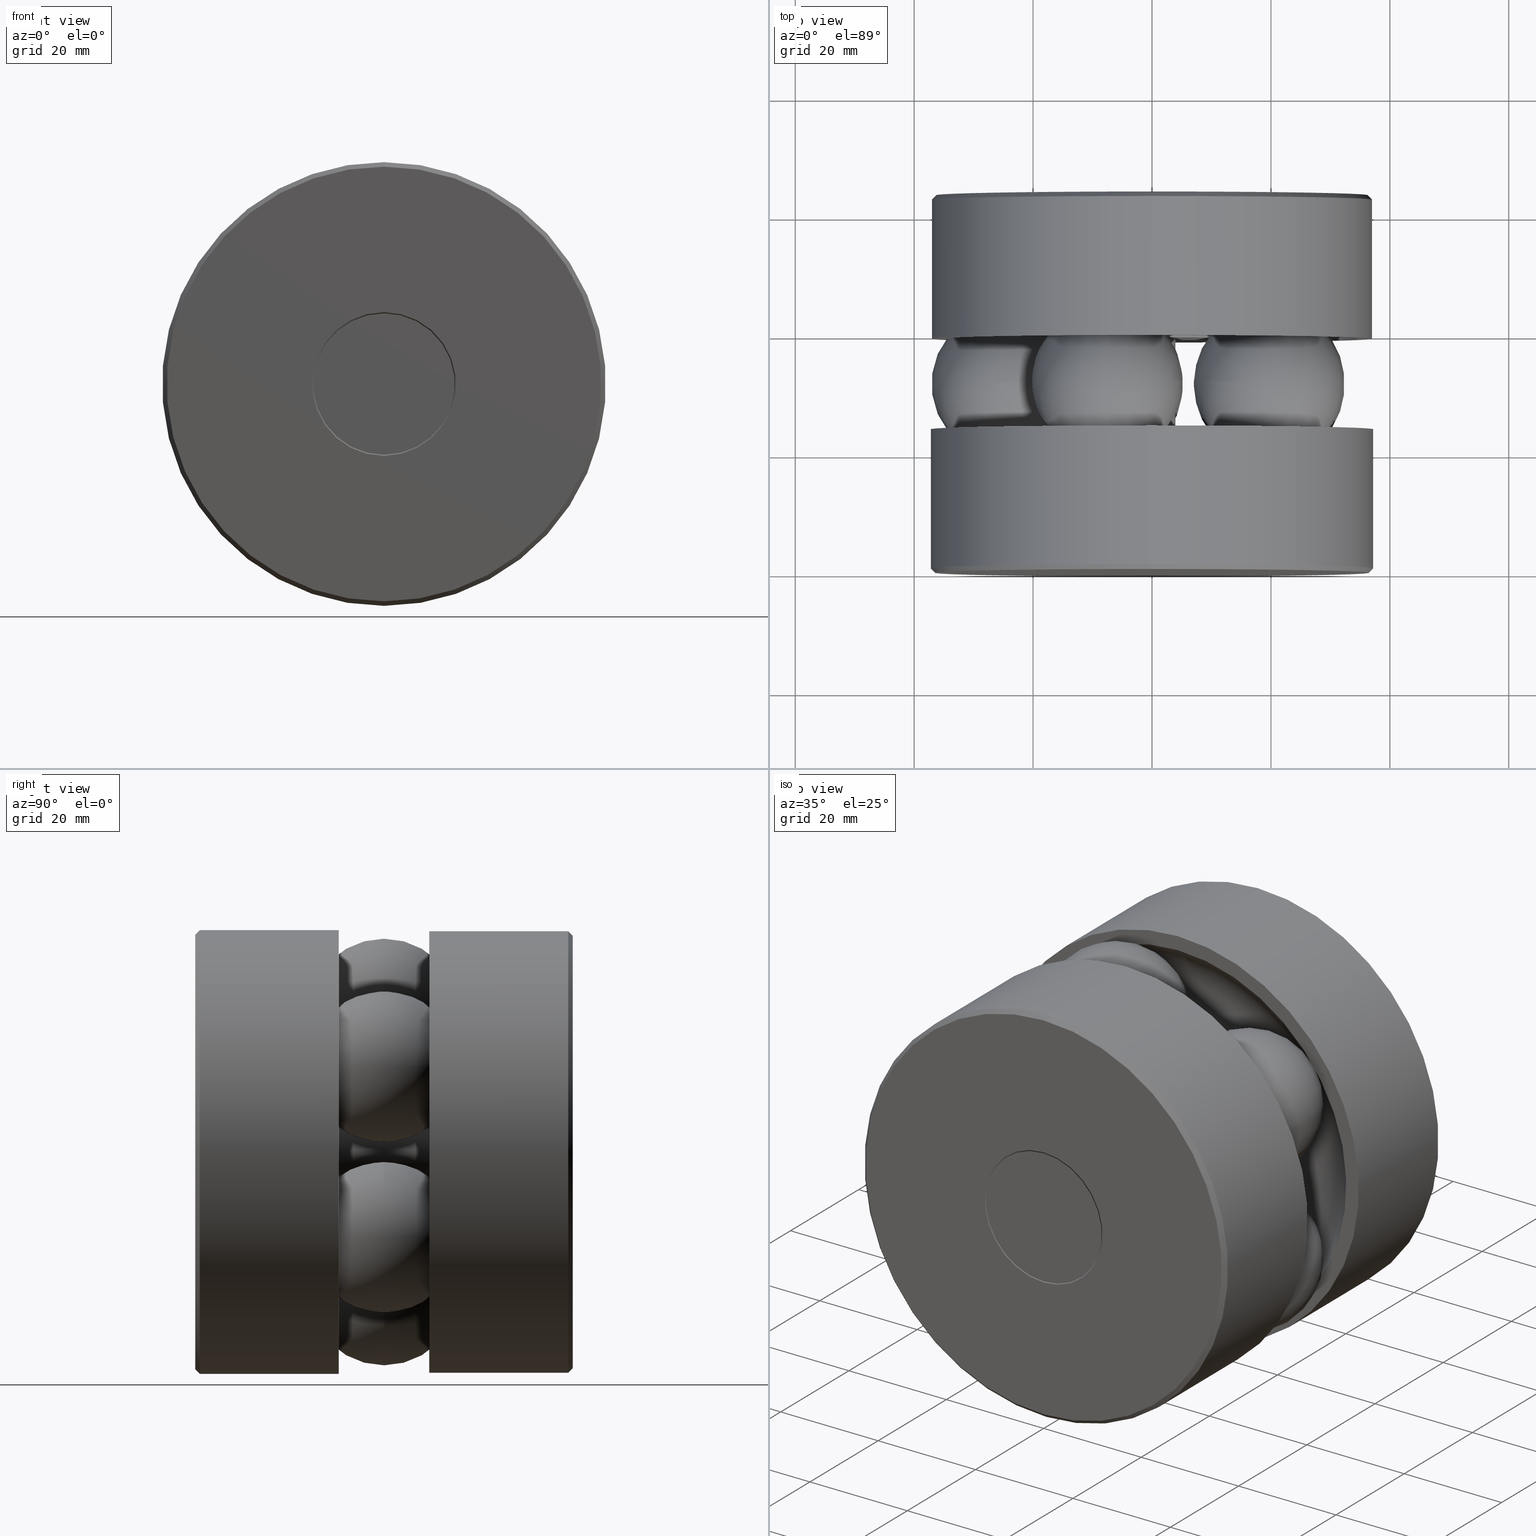
[diagram: canonical four-view strip — front | top / right | iso, engineering-drawing reading convention]
A machine part, canonical four-view strip (front | top / right | iso — engineering-drawing reading convention). The complete STEP part file that produces these views, byte-faithful:
ISO-10303-21;
HEADER;
FILE_DESCRIPTION (( 'STEP AP203' ),
    '1' );
FILE_NAME ('T-114RG_T-114RG-2015.step',
    '2016-02-04T16:15:54',
    ( '' ),
    ( '' ),
    'SwSTEP 2.0',
    'SolidWorks 2016',
    '' );
FILE_SCHEMA (( 'CONFIG_CONTROL_DESIGN' ));
ENDSEC;

DATA;
#1 = EDGE_LOOP ( 'NONE', ( #402 ) ) ;
#2 = DIRECTION ( 'NONE',  ( -0.0000000000000000000, 1.000000000000000000, 0.0000000000000000000 ) ) ;
#3 = DIRECTION ( 'NONE',  ( -0.0000000000000000000, 1.000000000000000000, -0.0000000000000000000 ) ) ;
#4 = FACE_OUTER_BOUND ( 'NONE', #305, .T. ) ;
#5 = APPROVAL ( #124, 'UNSPECIFIED' ) ;
#6 = APPROVAL_STATUS ( 'not_yet_approved' ) ;
#7 = PERSON_AND_ORGANIZATION ( #396, #177 ) ;
#8 = CLOSED_SHELL ( 'NONE', ( #414 ) ) ;
#9 = VERTEX_POINT ( 'NONE', #135 ) ;
#10 = CARTESIAN_POINT ( 'NONE',  ( 0.0000000000000000000, 1.550000000000000000, 0.1610000000000002000 ) ) ;
#11 = AXIS2_PLACEMENT_3D ( 'NONE', #281, #354, #238 ) ;
#12 = AXIS2_PLACEMENT_3D ( 'NONE', #375, #416, #117 ) ;
#13 = ADVANCED_FACE ( 'NONE', ( #44, #417 ), #448, .T. ) ;
#14 = FACE_OUTER_BOUND ( 'NONE', #387, .T. ) ;
#15 = ORIENTED_EDGE ( 'NONE', *, *, #539, .T. ) ;
#16 = COORDINATED_UNIVERSAL_TIME_OFFSET ( 5, 0, .BEHIND. ) ;
#17 = APPROVAL_STATUS ( 'not_yet_approved' ) ;
#18 = AXIS2_PLACEMENT_3D ( 'NONE', #422, #142, #52 ) ;
#19 = DIRECTION ( 'NONE',  ( 0.0000000000000000000, -1.000000000000000000, 0.0000000000000000000 ) ) ;
#20 = CIRCLE ( 'NONE', #312, 1.469000000000000100 ) ;
#21 = DIRECTION ( 'NONE',  ( 0.0000000000000000000, 0.0000000000000000000, 1.000000000000000000 ) ) ;
#22 = VERTEX_POINT ( 'NONE', #491 ) ;
#23 = CARTESIAN_POINT ( 'NONE',  ( 0.0000000000000000000, 0.0000000000000000000, 0.0000000000000000000 ) ) ;
#24 = CARTESIAN_POINT ( 'NONE',  ( -0.4755710678118621500, 2.500000000000000000, 0.0000000000000000000 ) ) ;
#25 = EDGE_CURVE ( 'NONE', #170, #170, #173, .T. ) ;
#26 = DIRECTION ( 'NONE',  ( 0.0000000000000000000, -1.000000000000000000, 0.0000000000000000000 ) ) ;
#27 = DIRECTION ( 'NONE',  ( -0.0000000000000000000, 1.000000000000000000, -0.0000000000000000000 ) ) ;
#28 = MECHANICAL_CONTEXT ( 'NONE', #110, 'mechanical' ) ;
#29 = CARTESIAN_POINT ( 'NONE',  ( 0.0000000000000000000, -3.295805410512742700E-018, 0.0000000000000000000 ) ) ;
#30 = FACE_OUTER_BOUND ( 'NONE', #369, .T. ) ;
#31 = CLOSED_SHELL ( 'NONE', ( #431 ) ) ;
#32 = DIRECTION ( 'NONE',  ( -0.8090169943749506700, 0.0000000000000000000, -0.5877852522924685900 ) ) ;
#33 = CARTESIAN_POINT ( 'NONE',  ( 0.0000000000000000000, 0.3125000000000000000, 0.1560000000000000300 ) ) ;
#34 = LOCAL_TIME ( 11, 15, 54.00000000000000000, #150 ) ;
#35 = CARTESIAN_POINT ( 'NONE',  ( 0.0000000000000000000, 2.500000000000000000, 0.0000000000000000000 ) ) ;
#36 = CC_DESIGN_APPROVAL ( #5, ( #466 ) ) ;
#37 = CARTESIAN_POINT ( 'NONE',  ( -1.469000000000000100, 0.9499999999999994000, 0.0000000000000000000 ) ) ;
#38 = DIRECTION ( 'NONE',  ( 0.3090169943749446800, 0.0000000000000000000, -0.9510565162951544200 ) ) ;
#39 = DIRECTION ( 'NONE',  ( 0.0000000000000000000, 0.0000000000000000000, 1.000000000000000000 ) ) ;
#40 = CYLINDRICAL_SURFACE ( 'NONE', #260, 0.1610000000000002800 ) ;
#41 = EDGE_LOOP ( 'NONE', ( #279 ) ) ;
#42 = DIRECTION ( 'NONE',  ( 0.0000000000000000000, 0.0000000000000000000, 1.000000000000000000 ) ) ;
#43 = SHAPE_DEFINITION_REPRESENTATION ( #90, #259 ) ;
#44 = FACE_OUTER_BOUND ( 'NONE', #46, .T. ) ;
#45 = DIRECTION ( 'NONE',  ( 0.0000000000000000000, 0.0000000000000000000, 1.000000000000000000 ) ) ;
#46 = EDGE_LOOP ( 'NONE', ( #479 ) ) ;
#47 = AXIS2_PLACEMENT_3D ( 'NONE', #463, #542, #210 ) ;
#48 = CALENDAR_DATE ( 2016, 4, 2 ) ;
#49 = CIRCLE ( 'NONE', #532, 0.5600000000000006100 ) ;
#50 = CLOSED_SHELL ( 'NONE', ( #13, #140, #400, #471, #333, #123, #353, #149 ) ) ;
#51 = AXIS2_PLACEMENT_3D ( 'NONE', #351, #3, #477 ) ;
#52 = DIRECTION ( 'NONE',  ( 0.0000000000000000000, 0.0000000000000000000, 1.000000000000000000 ) ) ;
#53 = ORIENTED_EDGE ( 'NONE', *, *, #83, .T. ) ;
#54 = FACE_OUTER_BOUND ( 'NONE', #168, .T. ) ;
#55 = EDGE_CURVE ( 'NONE', #156, #156, #499, .T. ) ;
#56 = FACE_BOUND ( 'NONE', #41, .T. ) ;
#57 = EDGE_LOOP ( 'NONE', ( #201 ) ) ;
#58 = ADVANCED_FACE ( 'NONE', ( #527, #14 ), #215, .T. ) ;
#59 = PERSON_AND_ORGANIZATION ( #396, #177 ) ;
#60 = CC_DESIGN_SECURITY_CLASSIFICATION ( #466, ( #325 ) ) ;
#61 = CARTESIAN_POINT ( 'NONE',  ( 0.0000000000000000000, 1.250000000000000000, 0.0000000000000000000 ) ) ;
#62 = EDGE_LOOP ( 'NONE', ( #520 ) ) ;
#63 = CARTESIAN_POINT ( 'NONE',  ( 0.0000000000000000000, 1.550000000000000000, 0.0000000000000000000 ) ) ;
#64 = CIRCLE ( 'NONE', #418, 0.4755710678118616500 ) ;
#65 = DIRECTION ( 'NONE',  ( 0.0000000000000000000, 0.0000000000000000000, 1.000000000000000000 ) ) ;
#66 = CARTESIAN_POINT ( 'NONE',  ( 0.0000000000000000000, 0.0000000000000000000, 0.0000000000000000000 ) ) ;
#67 = DIRECTION ( 'NONE',  ( 0.0000000000000000000, 0.0000000000000000000, 1.000000000000000000 ) ) ;
#68 = CLOSED_SHELL ( 'NONE', ( #189, #166, #58, #519, #434, #537, #144, #514 ) ) ;
#69 = FACE_OUTER_BOUND ( 'NONE', #428, .T. ) ;
#70 = EDGE_LOOP ( 'NONE', ( #299 ) ) ;
#71 = AXIS2_PLACEMENT_3D ( 'NONE', #453, #169, #67 ) ;
#72 = CARTESIAN_POINT ( 'NONE',  ( 0.0000000000000000000, 1.250000000000000000, 0.0000000000000000000 ) ) ;
#73 = AXIS2_PLACEMENT_3D ( 'NONE', #61, #435, #383 ) ;
#74 = APPROVAL_ROLE ( '' ) ;
#75 = CARTESIAN_POINT ( 'NONE',  ( 0.0000000000000000000, 0.9499999999999994000, 1.469000000000000100 ) ) ;
#76 = CIRCLE ( 'NONE', #368, 0.1560000000000003600 ) ;
#77 = CARTESIAN_POINT ( 'NONE',  ( 0.0000000000000000000, 2.469999999999999800, 0.0000000000000000000 ) ) ;
#78 = DIRECTION ( 'NONE',  ( 0.0000000000000000000, -1.000000000000000000, 0.0000000000000000000 ) ) ;
#79 = DIRECTION ( 'NONE',  ( -0.0000000000000000000, 1.000000000000000000, -0.0000000000000000000 ) ) ;
#80 = ADVANCED_FACE ( 'NONE', ( ), #490, .T. ) ;
#81 = PLANE ( 'NONE',  #47 ) ;
#82 = EDGE_LOOP ( 'NONE', ( #378 ) ) ;
#83 = EDGE_CURVE ( 'NONE', #364, #364, #397, .T. ) ;
#84 = DIRECTION ( 'NONE',  ( -0.0000000000000000000, 1.000000000000000000, -0.0000000000000000000 ) ) ;
#85 = DIMENSIONAL_EXPONENTS ( 1.000000000000000000, 0.0000000000000000000, 0.0000000000000000000, 0.0000000000000000000, 0.0000000000000000000, 0.0000000000000000000, 0.0000000000000000000 ) ;
#86 = LENGTH_MEASURE_WITH_UNIT ( LENGTH_MEASURE( 0.02539999999999999900 ), #318 );
#87 = CARTESIAN_POINT ( 'NONE',  ( 0.0000000000000000000, 0.0000000000000000000, 0.0000000000000000000 ) ) ;
#88 = CARTESIAN_POINT ( 'NONE',  ( -0.4755710678118616500, -1.091043786907128900E-016, 0.0000000000000000000 ) ) ;
#89 = PRODUCT_RELATED_PRODUCT_CATEGORY ( 'detail', '', ( #348 ) ) ;
#90 = PRODUCT_DEFINITION_SHAPE ( 'NONE', 'NONE',  #188 ) ;
#91 = COORDINATED_UNIVERSAL_TIME_OFFSET ( 5, 0, .BEHIND. ) ;
#92 = FACE_OUTER_BOUND ( 'NONE', #197, .T. ) ;
#93 = CLOSED_SHELL ( 'NONE', ( #247, #231, #304, #391, #119 ) ) ;
#94 = ORIENTED_EDGE ( 'NONE', *, *, #155, .F. ) ;
#95 = VERTEX_POINT ( 'NONE', #460 ) ;
#96 = AXIS2_PLACEMENT_3D ( 'NONE', #116, #157, #237 ) ;
#97 = DIRECTION ( 'NONE',  ( 0.0000000000000000000, 0.0000000000000000000, 1.000000000000000000 ) ) ;
#98 = EDGE_LOOP ( 'NONE', ( #153 ) ) ;
#99 = LOCAL_TIME ( 11, 15, 54.00000000000000000, #223 ) ;
#100 = SPHERICAL_SURFACE ( 'NONE', #511, 0.5000000000000001100 ) ;
#101 = AXIS2_PLACEMENT_3D ( 'NONE', #359, #379, #309 ) ;
#102 = CARTESIAN_POINT ( 'NONE',  ( 0.0000000000000000000, 2.500000000000000000, 0.0000000000000000000 ) ) ;
#103 = CARTESIAN_POINT ( 'NONE',  ( 0.0000000000000000000, -2.149129519709130200E-016, 1.439000000000000100 ) ) ;
#104 = ORIENTED_EDGE ( 'NONE', *, *, #405, .T. ) ;
#105 = EDGE_LOOP ( 'NONE', ( #438 ) ) ;
#106 = CARTESIAN_POINT ( 'NONE',  ( -0.2966563145999470700, 1.250000000000000000, 0.9130142556433488200 ) ) ;
#107 = VERTEX_POINT ( 'NONE', #517 ) ;
#108 = EDGE_CURVE ( 'NONE', #251, #251, #130, .T. ) ;
#109 = CARTESIAN_POINT ( 'NONE',  ( 0.0000000000000000000, 0.3125000000000000000, 0.0000000000000000000 ) ) ;
#110 = APPLICATION_CONTEXT ( 'configuration controlled 3d designs of mechanical parts and assemblies' ) ;
#111 = EDGE_LOOP ( 'NONE', ( #449 ) ) ;
#112 = DIRECTION ( 'NONE',  ( 0.0000000000000000000, 0.0000000000000000000, 1.000000000000000000 ) ) ;
#113 = FACE_OUTER_BOUND ( 'NONE', #483, .T. ) ;
#114 = EDGE_LOOP ( 'NONE', ( #53 ) ) ;
#115 = APPROVAL_DATE_TIME ( #234, #357 ) ;
#116 = CARTESIAN_POINT ( 'NONE',  ( 0.0000000000000000000, 2.500000000000000000, 0.0000000000000000000 ) ) ;
#117 = DIRECTION ( 'NONE',  ( 0.0000000000000000000, 0.0000000000000000000, 1.000000000000000000 ) ) ;
#118 = ORIENTED_EDGE ( 'NONE', *, *, #486, .F. ) ;
#119 = ADVANCED_FACE ( 'NONE', ( #30, #56 ), #147, .T. ) ;
#120 = VERTEX_POINT ( 'NONE', #311 ) ;
#121 = DIRECTION ( 'NONE',  ( 0.0000000000000000000, 0.0000000000000000000, 1.000000000000000000 ) ) ;
#122 = CIRCLE ( 'NONE', #424, 0.4684999999999972000 ) ;
#123 = ADVANCED_FACE ( 'NONE', ( #113, #352 ), #81, .T. ) ;
#124 = APPROVAL_STATUS ( 'not_yet_approved' ) ;
#125 =( NAMED_UNIT ( * ) SI_UNIT ( $, .STERADIAN. ) SOLID_ANGLE_UNIT ( ) );
#126 = AXIS2_PLACEMENT_3D ( 'NONE', #87, #39, #371 ) ;
#127 = DIRECTION ( 'NONE',  ( 0.0000000000000000000, 0.0000000000000000000, 1.000000000000000000 ) ) ;
#128 = CARTESIAN_POINT ( 'NONE',  ( 0.0000000000000000000, 1.550000000000000000, 0.5600000000000006100 ) ) ;
#129 = EDGE_LOOP ( 'NONE', ( #406 ) ) ;
#130 = CIRCLE ( 'NONE', #478, 0.5600000000000005000 ) ;
#131 = CARTESIAN_POINT ( 'NONE',  ( 0.7766563145999529900, 1.250000000000000000, 0.5642738422007700400 ) ) ;
#132 = APPROVAL_PERSON_ORGANIZATION ( #242, #357, #366 ) ;
#133 = MANIFOLD_SOLID_BREP ( 'Revolve2[3]', #50 ) ;
#134 = SPHERICAL_SURFACE ( 'NONE', #274, 0.5000000000000001100 ) ;
#135 = CARTESIAN_POINT ( 'NONE',  ( 0.0000000000000000000, 2.500000000000000000, 0.4684999999999977000 ) ) ;
#136 = CLOSED_SHELL ( 'NONE', ( #294 ) ) ;
#137 = AXIS2_PLACEMENT_3D ( 'NONE', #207, #536, #295 ) ;
#138 = CIRCLE ( 'NONE', #287, 1.462000000000000200 ) ;
#139 = VERTEX_POINT ( 'NONE', #103 ) ;
#140 = ADVANCED_FACE ( 'NONE', ( #462, #186 ), #342, .T. ) ;
#141 = CARTESIAN_POINT ( 'NONE',  ( 0.0000000000000000000, 1.550000000000000000, 0.0000000000000000000 ) ) ;
#142 = DIRECTION ( 'NONE',  ( -0.0000000000000000000, 1.000000000000000000, -0.0000000000000000000 ) ) ;
#143 = EDGE_CURVE ( 'NONE', #139, #139, #266, .T. ) ;
#144 = ADVANCED_FACE ( 'NONE', ( #4, #241 ), #377, .T. ) ;
#145 =( NAMED_UNIT ( * ) PLANE_ANGLE_UNIT ( ) SI_UNIT ( $, .RADIAN. ) );
#146 = EDGE_LOOP ( 'NONE', ( #329 ) ) ;
#147 = CONICAL_SURFACE ( 'NONE', #509, 0.1560000000000000300, 0.7853981633974437300 ) ;
#148 = ORIENTED_EDGE ( 'NONE', *, *, #83, .F. ) ;
#149 = ADVANCED_FACE ( 'NONE', ( #69, #272 ), #407, .T. ) ;
#150 = COORDINATED_UNIVERSAL_TIME_OFFSET ( 5, 0, .BEHIND. ) ;
#151 = AXIS2_PLACEMENT_3D ( 'NONE', #283, #324, #495 ) ;
#152 = CYLINDRICAL_SURFACE ( 'NONE', #195, 0.1560000000000001900 ) ;
#153 = ORIENTED_EDGE ( 'NONE', *, *, #515, .T. ) ;
#154 = CIRCLE ( 'NONE', #233, 0.1610000000000003900 ) ;
#155 = EDGE_CURVE ( 'NONE', #22, #22, #484, .T. ) ;
#156 = VERTEX_POINT ( 'NONE', #33 ) ;
#157 = DIRECTION ( 'NONE',  ( 0.0000000000000000000, -1.000000000000000000, 0.0000000000000000000 ) ) ;
#158 = ORIENTED_EDGE ( 'NONE', *, *, #459, .T. ) ;
#159 = ORIENTED_EDGE ( 'NONE', *, *, #253, .F. ) ;
#160 = CC_DESIGN_PERSON_AND_ORGANIZATION_ASSIGNMENT ( #59, #261, ( #348 ) ) ;
#161 = LOCAL_TIME ( 11, 15, 54.00000000000000000, #268 ) ;
#162 = DATE_TIME_ROLE ( 'creation_date' ) ;
#163 = FACE_OUTER_BOUND ( 'NONE', #398, .T. ) ;
#164 = DIRECTION ( 'NONE',  ( -0.0000000000000000000, 1.000000000000000000, -0.0000000000000000000 ) ) ;
#165 = CARTESIAN_POINT ( 'NONE',  ( -0.9600000000000003000, 1.250000000000000000, 0.0000000000000000000 ) ) ;
#166 = ADVANCED_FACE ( 'NONE', ( #327, #232 ), #40, .F. ) ;
#167 = FACE_BOUND ( 'NONE', #256, .T. ) ;
#168 = EDGE_LOOP ( 'NONE', ( #355 ) ) ;
#169 = DIRECTION ( 'NONE',  ( -0.0000000000000000000, 1.000000000000000000, -0.0000000000000000000 ) ) ;
#170 = VERTEX_POINT ( 'NONE', #10 ) ;
#171 = DIRECTION ( 'NONE',  ( -0.8090169943749422300, 0.0000000000000000000, 0.5877852522924802400 ) ) ;
#172 = EDGE_CURVE ( 'NONE', #458, #458, #154, .T. ) ;
#173 = CIRCLE ( 'NONE', #307, 0.1610000000000002000 ) ;
#174 = PLANE ( 'NONE',  #452 ) ;
#175 = APPLICATION_CONTEXT ( 'configuration controlled 3d designs of mechanical parts and assemblies' ) ;
#176 = ORIENTED_EDGE ( 'NONE', *, *, #55, .T. ) ;
#177 = ORGANIZATION ( 'UNSPECIFIED', 'UNSPECIFIED', '' ) ;
#178 = DIRECTION ( 'NONE',  ( 0.0000000000000000000, 0.0000000000000000000, 1.000000000000000000 ) ) ;
#179 = DIRECTION ( 'NONE',  ( 0.0000000000000000000, -0.0000000000000000000, -1.000000000000000000 ) ) ;
#180 = AXIS2_PLACEMENT_3D ( 'NONE', #37, #363, #235 ) ;
#181 = DIRECTION ( 'NONE',  ( -0.0000000000000000000, 1.000000000000000000, -0.0000000000000000000 ) ) ;
#182 = EDGE_LOOP ( 'NONE', ( #159 ) ) ;
#183 = FACE_BOUND ( 'NONE', #384, .T. ) ;
#184 = CIRCLE ( 'NONE', #246, 1.462000000000000200 ) ;
#185 = DIRECTION ( 'NONE',  ( 0.0000000000000000000, 0.0000000000000000000, -1.000000000000000000 ) ) ;
#186 = FACE_OUTER_BOUND ( 'NONE', #372, .T. ) ;
#187 = EDGE_LOOP ( 'NONE', ( #222 ) ) ;
#188 = PRODUCT_DEFINITION ( 'UNKNOWN', '', #325, #420 ) ;
#189 = ADVANCED_FACE ( 'NONE', ( #392, #167 ), #456, .F. ) ;
#190 = MANIFOLD_SOLID_BREP ( 'BALLS[4]', #136 ) ;
#191 = CARTESIAN_POINT ( 'NONE',  ( 0.0000000000000000000, 2.500000000000000000, 0.4755710678118621500 ) ) ;
#192 = ORIENTED_EDGE ( 'NONE', *, *, #429, .T. ) ;
#193 = ORIENTED_EDGE ( 'NONE', *, *, #370, .F. ) ;
#194 = APPROVAL_DATE_TIME ( #300, #5 ) ;
#195 = AXIS2_PLACEMENT_3D ( 'NONE', #314, #276, #65 ) ;
#196 = SPHERICAL_SURFACE ( 'NONE', #338, 0.5000000000000001100 ) ;
#197 = EDGE_LOOP ( 'NONE', ( #282 ) ) ;
#198 = DIRECTION ( 'NONE',  ( -0.5877852522924685900, 0.0000000000000000000, 0.8090169943749506700 ) ) ;
#199 = EDGE_LOOP ( 'NONE', ( #319 ) ) ;
#200 = CARTESIAN_POINT ( 'NONE',  ( 0.0000000000000000000, 0.9499999999999995100, 0.5600000000000005000 ) ) ;
#201 = ORIENTED_EDGE ( 'NONE', *, *, #487, .F. ) ;
#202 = DIRECTION ( 'NONE',  ( 0.0000000000000000000, 0.0000000000000000000, 1.000000000000000000 ) ) ;
#203 = ORIENTED_EDGE ( 'NONE', *, *, #382, .T. ) ;
#204 = EDGE_CURVE ( 'NONE', #347, #347, #138, .T. ) ;
#205 = CARTESIAN_POINT ( 'NONE',  ( 0.0000000000000000000, 1.550000000000000000, 0.0000000000000000000 ) ) ;
#206 = TOROIDAL_SURFACE ( 'NONE', #73, 0.9600000000000003000, 0.5000000000000001100 ) ;
#207 = CARTESIAN_POINT ( 'NONE',  ( 0.0000000000000000000, 0.9499999999999994000, 0.0000000000000000000 ) ) ;
#208 = AXIS2_PLACEMENT_3D ( 'NONE', #503, #381, #292 ) ;
#209 = DIRECTION ( 'NONE',  ( 0.0000000000000000000, 0.0000000000000000000, 1.000000000000000000 ) ) ;
#210 = DIRECTION ( 'NONE',  ( 0.0000000000000000000, 0.0000000000000000000, 1.000000000000000000 ) ) ;
#211 = APPROVAL_PERSON_ORGANIZATION ( #315, #5, #221 ) ;
#212 = FACE_BOUND ( 'NONE', #111, .T. ) ;
#213 = CARTESIAN_POINT ( 'NONE',  ( 0.0000000000000000000, 0.9499999999999994000, 1.359999999999999900 ) ) ;
#214 = CARTESIAN_POINT ( 'NONE',  ( 0.0000000000000000000, -3.295805410512742700E-018, 0.4755710678118616500 ) ) ;
#215 = PLANE ( 'NONE',  #419 ) ;
#216 = VERTEX_POINT ( 'NONE', #214 ) ;
#217 = DIRECTION ( 'NONE',  ( 0.0000000000000000000, -0.0000000000000000000, -1.000000000000000000 ) ) ;
#218 = DATE_TIME_ROLE ( 'classification_date' ) ;
#219 = CARTESIAN_POINT ( 'NONE',  ( 0.0000000000000000000, 1.550000000000000000, 0.0000000000000000000 ) ) ;
#220 = APPROVAL ( #17, 'UNSPECIFIED' ) ;
#221 = APPROVAL_ROLE ( '' ) ;
#222 = ORIENTED_EDGE ( 'NONE', *, *, #459, .F. ) ;
#223 = COORDINATED_UNIVERSAL_TIME_OFFSET ( 5, 0, .BEHIND. ) ;
#224 = CIRCLE ( 'NONE', #101, 1.469000000000000100 ) ;
#225 = AXIS2_PLACEMENT_3D ( 'NONE', #88, #19, #217 ) ;
#226 = ORIENTED_EDGE ( 'NONE', *, *, #143, .T. ) ;
#227 = VERTEX_POINT ( 'NONE', #213 ) ;
#228 = CYLINDRICAL_SURFACE ( 'NONE', #51, 0.1610000000000000600 ) ;
#229 = EDGE_CURVE ( 'NONE', #236, #236, #20, .T. ) ;
#230 = DIRECTION ( 'NONE',  ( -0.0000000000000000000, 1.000000000000000000, 0.0000000000000000000 ) ) ;
#231 = ADVANCED_FACE ( 'NONE', ( #248 ), #339, .T. ) ;
#232 = FACE_OUTER_BOUND ( 'NONE', #345, .T. ) ;
#233 = AXIS2_PLACEMENT_3D ( 'NONE', #489, #84, #202 ) ;
#234 = DATE_AND_TIME ( #343, #450 ) ;
#235 = DIRECTION ( 'NONE',  ( 0.0000000000000000000, 0.0000000000000000000, 1.000000000000000000 ) ) ;
#236 = VERTEX_POINT ( 'NONE', #528 ) ;
#237 = DIRECTION ( 'NONE',  ( 0.0000000000000000000, 0.0000000000000000000, -1.000000000000000000 ) ) ;
#238 = DIRECTION ( 'NONE',  ( 0.0000000000000000000, 0.0000000000000000000, 1.000000000000000000 ) ) ;
#239 = CC_DESIGN_APPROVAL ( #220, ( #188 ) ) ;
#240 = ORIENTED_EDGE ( 'NONE', *, *, #155, .T. ) ;
#241 = FACE_BOUND ( 'NONE', #146, .T. ) ;
#242 = PERSON_AND_ORGANIZATION ( #396, #177 ) ;
#243 = DIRECTION ( 'NONE',  ( 0.0000000000000000000, 0.0000000000000000000, 1.000000000000000000 ) ) ;
#244 = FACE_OUTER_BOUND ( 'NONE', #481, .T. ) ;
#245 = DIRECTION ( 'NONE',  ( 0.0000000000000000000, -1.000000000000000000, 0.0000000000000000000 ) ) ;
#246 = AXIS2_PLACEMENT_3D ( 'NONE', #77, #337, #257 ) ;
#247 = ADVANCED_FACE ( 'NONE', ( #362 ), #174, .T. ) ;
#248 = FACE_OUTER_BOUND ( 'NONE', #129, .T. ) ;
#249 = CARTESIAN_POINT ( 'NONE',  ( 0.0000000000000000000, 1.550000000000000000, 1.359999999999999900 ) ) ;
#250 = APPLICATION_PROTOCOL_DEFINITION ( 'international standard', 'config_control_design', 1994, #110 ) ;
#251 = VERTEX_POINT ( 'NONE', #200 ) ;
#252 = CARTESIAN_POINT ( 'NONE',  ( 0.0000000000000000000, 0.0000000000000000000, 0.0000000000000000000 ) ) ;
#253 = EDGE_CURVE ( 'NONE', #120, #120, #122, .T. ) ;
#254 = CARTESIAN_POINT ( 'NONE',  ( -0.4684999999999972000, 0.0000000000000000000, 0.0000000000000000000 ) ) ;
#255 = EDGE_LOOP ( 'NONE', ( #226 ) ) ;
#256 = EDGE_LOOP ( 'NONE', ( #322 ) ) ;
#257 = DIRECTION ( 'NONE',  ( 0.0000000000000000000, 0.0000000000000000000, 1.000000000000000000 ) ) ;
#258 = PERSON_AND_ORGANIZATION ( #396, #177 ) ;
#259 = ADVANCED_BREP_SHAPE_REPRESENTATION ( 'T-114RG_T-114RG-2015', ( #286, #447, #133, #373, #326, #269, #389, #190, #126 ), #474 ) ;
#260 = AXIS2_PLACEMENT_3D ( 'NONE', #23, #164, #243 ) ;
#261 = PERSON_AND_ORGANIZATION_ROLE ( 'design_owner' ) ;
#262 = DIRECTION ( 'NONE',  ( 0.5877852522924802400, -0.0000000000000000000, 0.8090169943749422300 ) ) ;
#263 = CIRCLE ( 'NONE', #137, 1.359999999999999900 ) ;
#264 = CYLINDRICAL_SURFACE ( 'NONE', #11, 1.462000000000000200 ) ;
#265 = ORIENTED_EDGE ( 'NONE', *, *, #25, .T. ) ;
#266 = CIRCLE ( 'NONE', #71, 1.439000000000000100 ) ;
#267 = ORIENTED_EDGE ( 'NONE', *, *, #108, .F. ) ;
#268 = COORDINATED_UNIVERSAL_TIME_OFFSET ( 5, 0, .BEHIND. ) ;
#269 = MANIFOLD_SOLID_BREP ( 'BALLS[2]', #518 ) ;
#270 = CC_DESIGN_PERSON_AND_ORGANIZATION_ASSIGNMENT ( #258, #538, ( #188 ) ) ;
#271 = FACE_OUTER_BOUND ( 'NONE', #57, .T. ) ;
#272 = FACE_BOUND ( 'NONE', #313, .T. ) ;
#273 = EDGE_LOOP ( 'NONE', ( #267 ) ) ;
#274 = AXIS2_PLACEMENT_3D ( 'NONE', #106, #430, #38 ) ;
#275 = FACE_OUTER_BOUND ( 'NONE', #393, .T. ) ;
#276 = DIRECTION ( 'NONE',  ( -0.0000000000000000000, 1.000000000000000000, -0.0000000000000000000 ) ) ;
#277 = DIRECTION ( 'NONE',  ( -0.0000000000000000000, 1.000000000000000000, -0.0000000000000000000 ) ) ;
#278 = DIRECTION ( 'NONE',  ( 0.0000000000000000000, 0.0000000000000000000, 1.000000000000000000 ) ) ;
#279 = ORIENTED_EDGE ( 'NONE', *, *, #55, .F. ) ;
#280 = AXIS2_PLACEMENT_3D ( 'NONE', #109, #181, #42 ) ;
#281 = CARTESIAN_POINT ( 'NONE',  ( 0.0000000000000000000, 0.0000000000000000000, 0.0000000000000000000 ) ) ;
#282 = ORIENTED_EDGE ( 'NONE', *, *, #515, .F. ) ;
#283 = CARTESIAN_POINT ( 'NONE',  ( 0.0000000000000000000, 0.3145710678118652200, 0.0000000000000000000 ) ) ;
#284 = CIRCLE ( 'NONE', #18, 0.4684999999999977000 ) ;
#285 = DIRECTION ( 'NONE',  ( -0.0000000000000000000, 1.000000000000000000, -0.0000000000000000000 ) ) ;
#286 = MANIFOLD_SOLID_BREP ( 'Revolve2[1]', #93 ) ;
#287 = AXIS2_PLACEMENT_3D ( 'NONE', #219, #461, #502 ) ;
#288 = DIRECTION ( 'NONE',  ( 0.9510565162951500900, 0.0000000000000000000, -0.3090169943749582200 ) ) ;
#289 = CONICAL_SURFACE ( 'NONE', #415, 0.4755710678118616500, 0.7853981633974426200 ) ;
#290 = DIRECTION ( 'NONE',  ( -0.0000000000000000000, 1.000000000000000000, -0.0000000000000000000 ) ) ;
#291 = DIRECTION ( 'NONE',  ( 0.0000000000000000000, -0.0000000000000000000, -1.000000000000000000 ) ) ;
#292 = DIRECTION ( 'NONE',  ( 0.0000000000000000000, 0.0000000000000000000, 1.000000000000000000 ) ) ;
#293 = ORIENTED_EDGE ( 'NONE', *, *, #25, .F. ) ;
#294 = ADVANCED_FACE ( 'NONE', ( ), #100, .T. ) ;
#295 = DIRECTION ( 'NONE',  ( 0.0000000000000000000, 0.0000000000000000000, 1.000000000000000000 ) ) ;
#296 = DIRECTION ( 'NONE',  ( 0.0000000000000000000, 0.0000000000000000000, 1.000000000000000000 ) ) ;
#297 = CC_DESIGN_DATE_AND_TIME_ASSIGNMENT ( #358, #162, ( #188 ) ) ;
#298 = DIRECTION ( 'NONE',  ( 0.3090169943749582200, 0.0000000000000000000, 0.9510565162951500900 ) ) ;
#299 = ORIENTED_EDGE ( 'NONE', *, *, #204, .F. ) ;
#300 = DATE_AND_TIME ( #411, #523 ) ;
#301 = TOROIDAL_SURFACE ( 'NONE', #507, 0.9600000000000003000, 0.4999999999999997800 ) ;
#302 = FACE_OUTER_BOUND ( 'NONE', #273, .T. ) ;
#303 = PLANE ( 'NONE',  #394 ) ;
#304 = ADVANCED_FACE ( 'NONE', ( #441, #163 ), #513, .T. ) ;
#305 = EDGE_LOOP ( 'NONE', ( #192 ) ) ;
#306 = AXIS2_PLACEMENT_3D ( 'NONE', #141, #310, #541 ) ;
#307 = AXIS2_PLACEMENT_3D ( 'NONE', #205, #285, #127 ) ;
#308 = DIRECTION ( 'NONE',  ( -0.0000000000000000000, 1.000000000000000000, -0.0000000000000000000 ) ) ;
#309 = DIRECTION ( 'NONE',  ( 0.0000000000000000000, 0.0000000000000000000, 1.000000000000000000 ) ) ;
#310 = DIRECTION ( 'NONE',  ( -0.0000000000000000000, 1.000000000000000000, -0.0000000000000000000 ) ) ;
#311 = CARTESIAN_POINT ( 'NONE',  ( 0.0000000000000000000, 0.0000000000000000000, 0.4684999999999972000 ) ) ;
#312 = AXIS2_PLACEMENT_3D ( 'NONE', #497, #290, #21 ) ;
#313 = EDGE_LOOP ( 'NONE', ( #492 ) ) ;
#314 = CARTESIAN_POINT ( 'NONE',  ( 0.0000000000000000000, 0.0000000000000000000, 0.0000000000000000000 ) ) ;
#315 = PERSON_AND_ORGANIZATION ( #396, #177 ) ;
#316 = SPHERICAL_SURFACE ( 'NONE', #332, 0.5000000000000001100 ) ;
#317 = FACE_OUTER_BOUND ( 'NONE', #473, .T. ) ;
#318 =( LENGTH_UNIT ( ) NAMED_UNIT ( * ) SI_UNIT ( $, .METRE. ) );
#319 = ORIENTED_EDGE ( 'NONE', *, *, #382, .F. ) ;
#320 = CARTESIAN_POINT ( 'NONE',  ( 0.0000000000000000000, 0.9499999999999999600, 0.0000000000000000000 ) ) ;
#321 = DIRECTION ( 'NONE',  ( -0.0000000000000000000, 1.000000000000000000, -0.0000000000000000000 ) ) ;
#322 = ORIENTED_EDGE ( 'NONE', *, *, #172, .F. ) ;
#323 = VERTEX_POINT ( 'NONE', #476 ) ;
#324 = DIRECTION ( 'NONE',  ( -0.0000000000000000000, 1.000000000000000000, -0.0000000000000000000 ) ) ;
#325 = PRODUCT_DEFINITION_FORMATION_WITH_SPECIFIED_SOURCE ( 'ANY', '', #348, .NOT_KNOWN. ) ;
#326 = MANIFOLD_SOLID_BREP ( 'BALLS[1]', #8 ) ;
#327 = FACE_OUTER_BOUND ( 'NONE', #105, .T. ) ;
#328 = CARTESIAN_POINT ( 'NONE',  ( 0.0000000000000000000, 2.185428932188135100, 0.1610000000000003900 ) ) ;
#329 = ORIENTED_EDGE ( 'NONE', *, *, #539, .F. ) ;
#330 = PERSON_AND_ORGANIZATION ( #396, #177 ) ;
#331 = CLOSED_SHELL ( 'NONE', ( #475 ) ) ;
#332 = AXIS2_PLACEMENT_3D ( 'NONE', #442, #262, #171 ) ;
#333 = ADVANCED_FACE ( 'NONE', ( #244, #451 ), #228, .F. ) ;
#334 = DIRECTION ( 'NONE',  ( 0.0000000000000000000, 0.0000000000000000000, 1.000000000000000000 ) ) ;
#335 = CARTESIAN_POINT ( 'NONE',  ( 0.0000000000000000000, 0.3125000000000000000, 0.0000000000000000000 ) ) ;
#336 = VERTEX_POINT ( 'NONE', #75 ) ;
#337 = DIRECTION ( 'NONE',  ( -0.0000000000000000000, 1.000000000000000000, -0.0000000000000000000 ) ) ;
#338 = AXIS2_PLACEMENT_3D ( 'NONE', #165, #404, #367 ) ;
#339 = PLANE ( 'NONE',  #401 ) ;
#340 = AXIS2_PLACEMENT_3D ( 'NONE', #252, #321, #121 ) ;
#341 = CARTESIAN_POINT ( 'NONE',  ( 0.0000000000000000000, 0.9499999999999995100, 0.0000000000000000000 ) ) ;
#342 = CONICAL_SURFACE ( 'NONE', #12, 1.469000000000000100, 0.7853981633974430600 ) ;
#343 = CALENDAR_DATE ( 2016, 4, 2 ) ;
#344 = FACE_OUTER_BOUND ( 'NONE', #1, .T. ) ;
#345 = EDGE_LOOP ( 'NONE', ( #293 ) ) ;
#346 = EDGE_CURVE ( 'NONE', #9, #9, #284, .T. ) ;
#347 = VERTEX_POINT ( 'NONE', #349 ) ;
#348 = PRODUCT ( 'T-114RG_T-114RG-2015', 'T-114RG_T-114RG-2015', '', ( #28 ) ) ;
#349 = CARTESIAN_POINT ( 'NONE',  ( 0.0000000000000000000, 1.550000000000000000, 1.462000000000000200 ) ) ;
#350 =( CONVERSION_BASED_UNIT ( 'INCH', #86 ) LENGTH_UNIT ( ) NAMED_UNIT ( #85 ) );
#351 = CARTESIAN_POINT ( 'NONE',  ( 0.0000000000000000000, 0.0000000000000000000, 0.0000000000000000000 ) ) ;
#352 = FACE_BOUND ( 'NONE', #187, .T. ) ;
#353 = ADVANCED_FACE ( 'NONE', ( #413, #302 ), #206, .F. ) ;
#354 = DIRECTION ( 'NONE',  ( -0.0000000000000000000, 1.000000000000000000, -0.0000000000000000000 ) ) ;
#355 = ORIENTED_EDGE ( 'NONE', *, *, #429, .F. ) ;
#356 = UNCERTAINTY_MEASURE_WITH_UNIT (LENGTH_MEASURE( 1.000000000000000100E-005 ), #350, 'distance_accuracy_value', 'NONE');
#357 = APPROVAL ( #6, 'UNSPECIFIED' ) ;
#358 = DATE_AND_TIME ( #465, #34 ) ;
#359 = CARTESIAN_POINT ( 'NONE',  ( 0.0000000000000000000, 0.9499999999999994000, 0.0000000000000000000 ) ) ;
#360 = DIRECTION ( 'NONE',  ( 0.0000000000000000000, 0.0000000000000000000, 1.000000000000000000 ) ) ;
#361 = AXIS2_PLACEMENT_3D ( 'NONE', #320, #433, #360 ) ;
#362 = FACE_OUTER_BOUND ( 'NONE', #182, .T. ) ;
#363 = DIRECTION ( 'NONE',  ( -0.0000000000000000000, 1.000000000000000000, 0.0000000000000000000 ) ) ;
#364 = VERTEX_POINT ( 'NONE', #191 ) ;
#365 = CARTESIAN_POINT ( 'NONE',  ( -0.5600000000000006100, 1.550000000000000000, 0.0000000000000000000 ) ) ;
#366 = APPROVAL_ROLE ( '' ) ;
#367 = DIRECTION ( 'NONE',  ( 1.000000000000000000, 0.0000000000000000000, 0.0000000000000000000 ) ) ;
#368 = AXIS2_PLACEMENT_3D ( 'NONE', #470, #27, #334 ) ;
#369 = EDGE_LOOP ( 'NONE', ( #464 ) ) ;
#370 = EDGE_CURVE ( 'NONE', #443, #443, #49, .T. ) ;
#371 = DIRECTION ( 'NONE',  ( 1.000000000000000000, 0.0000000000000000000, 0.0000000000000000000 ) ) ;
#372 = EDGE_LOOP ( 'NONE', ( #410 ) ) ;
#373 = MANIFOLD_SOLID_BREP ( 'Revolve3', #331 ) ;
#374 = APPROVAL_DATE_TIME ( #480, #220 ) ;
#375 = CARTESIAN_POINT ( 'NONE',  ( 0.0000000000000000000, 0.03000000000000005400, 0.0000000000000000000 ) ) ;
#376 = PERSON_AND_ORGANIZATION_ROLE ( 'classification_officer' ) ;
#377 = CONICAL_SURFACE ( 'NONE', #96, 1.432000000000000400, 0.7853981633974346200 ) ;
#378 = ORIENTED_EDGE ( 'NONE', *, *, #204, .T. ) ;
#379 = DIRECTION ( 'NONE',  ( -0.0000000000000000000, 1.000000000000000000, -0.0000000000000000000 ) ) ;
#380 = CIRCLE ( 'NONE', #530, 1.432000000000000400 ) ;
#381 = DIRECTION ( 'NONE',  ( -0.0000000000000000000, 1.000000000000000000, -0.0000000000000000000 ) ) ;
#382 = EDGE_CURVE ( 'NONE', #336, #336, #224, .T. ) ;
#383 = DIRECTION ( 'NONE',  ( 0.0000000000000000000, 0.0000000000000000000, 1.000000000000000000 ) ) ;
#384 = EDGE_LOOP ( 'NONE', ( #148 ) ) ;
#385 = APPLICATION_PROTOCOL_DEFINITION ( 'international standard', 'config_control_design', 1994, #175 ) ;
#386 = APPROVAL_PERSON_ORGANIZATION ( #493, #220, #74 ) ;
#387 = EDGE_LOOP ( 'NONE', ( #193 ) ) ;
#388 = CC_DESIGN_APPROVAL ( #357, ( #325 ) ) ;
#389 = MANIFOLD_SOLID_BREP ( 'BALLS[3]', #31 ) ;
#390 = DIRECTION ( 'NONE',  ( 0.0000000000000000000, -1.000000000000000000, 0.0000000000000000000 ) ) ;
#391 = ADVANCED_FACE ( 'NONE', ( #317, #271 ), #152, .T. ) ;
#392 = FACE_OUTER_BOUND ( 'NONE', #114, .T. ) ;
#393 = EDGE_LOOP ( 'NONE', ( #118 ) ) ;
#394 = AXIS2_PLACEMENT_3D ( 'NONE', #444, #26, #291 ) ;
#395 = FACE_OUTER_BOUND ( 'NONE', #82, .T. ) ;
#396 = PERSON ( 'UNSPECIFIED', 'UNSPECIFIED', 'UNSPECIFIED', ('UNSPECIFIED'), ('UNSPECIFIED'), ('UNSPECIFIED') ) ;
#397 = CIRCLE ( 'NONE', #399, 0.4755710678118621500 ) ;
#398 = EDGE_LOOP ( 'NONE', ( #500 ) ) ;
#399 = AXIS2_PLACEMENT_3D ( 'NONE', #35, #529, #485 ) ;
#400 = ADVANCED_FACE ( 'NONE', ( #494, #344 ), #521, .T. ) ;
#401 = AXIS2_PLACEMENT_3D ( 'NONE', #102, #2, #209 ) ;
#402 = ORIENTED_EDGE ( 'NONE', *, *, #143, .F. ) ;
#403 = CIRCLE ( 'NONE', #306, 1.359999999999999900 ) ;
#404 = DIRECTION ( 'NONE',  ( 0.0000000000000000000, 0.0000000000000000000, -1.000000000000000000 ) ) ;
#405 = EDGE_CURVE ( 'NONE', #227, #227, #263, .T. ) ;
#406 = ORIENTED_EDGE ( 'NONE', *, *, #346, .T. ) ;
#407 = PLANE ( 'NONE',  #180 ) ;
#408 = DIRECTION ( 'NONE',  ( 0.0000000000000000000, -0.0000000000000000000, -1.000000000000000000 ) ) ;
#409 = CC_DESIGN_PERSON_AND_ORGANIZATION_ASSIGNMENT ( #7, #472, ( #325 ) ) ;
#410 = ORIENTED_EDGE ( 'NONE', *, *, #229, .F. ) ;
#411 = CALENDAR_DATE ( 2016, 4, 2 ) ;
#412 = FACE_OUTER_BOUND ( 'NONE', #423, .T. ) ;
#413 = FACE_OUTER_BOUND ( 'NONE', #526, .T. ) ;
#414 = ADVANCED_FACE ( 'NONE', ( ), #134, .T. ) ;
#415 = AXIS2_PLACEMENT_3D ( 'NONE', #506, #498, #185 ) ;
#416 = DIRECTION ( 'NONE',  ( -0.0000000000000000000, 1.000000000000000000, -0.0000000000000000000 ) ) ;
#417 = FACE_OUTER_BOUND ( 'NONE', #199, .T. ) ;
#418 = AXIS2_PLACEMENT_3D ( 'NONE', #29, #308, #178 ) ;
#419 = AXIS2_PLACEMENT_3D ( 'NONE', #365, #390, #408 ) ;
#420 = DESIGN_CONTEXT ( 'detailed design', #175, 'design' ) ;
#421 = DIRECTION ( 'NONE',  ( 0.0000000000000000000, 0.0000000000000000000, -1.000000000000000000 ) ) ;
#422 = CARTESIAN_POINT ( 'NONE',  ( 0.0000000000000000000, 2.500000000000000000, 0.0000000000000000000 ) ) ;
#423 = EDGE_LOOP ( 'NONE', ( #15 ) ) ;
#424 = AXIS2_PLACEMENT_3D ( 'NONE', #66, #508, #45 ) ;
#425 = DATE_AND_TIME ( #531, #99 ) ;
#426 = CIRCLE ( 'NONE', #361, 0.1610000000000001200 ) ;
#427 = EDGE_LOOP ( 'NONE', ( #505 ) ) ;
#428 = EDGE_LOOP ( 'NONE', ( #203 ) ) ;
#429 = EDGE_CURVE ( 'NONE', #107, #107, #184, .T. ) ;
#430 = DIRECTION ( 'NONE',  ( -0.9510565162951543100, 0.0000000000000000000, -0.3090169943749447300 ) ) ;
#431 = ADVANCED_FACE ( 'NONE', ( ), #316, .T. ) ;
#432 = VERTEX_POINT ( 'NONE', #249 ) ;
#433 = DIRECTION ( 'NONE',  ( -0.0000000000000000000, 1.000000000000000000, -0.0000000000000000000 ) ) ;
#434 = ADVANCED_FACE ( 'NONE', ( #212, #534 ), #303, .T. ) ;
#435 = DIRECTION ( 'NONE',  ( -0.0000000000000000000, 1.000000000000000000, -0.0000000000000000000 ) ) ;
#436 = CARTESIAN_POINT ( 'NONE',  ( 0.0000000000000000000, 2.500000000000000000, 0.0000000000000000000 ) ) ;
#437 = CC_DESIGN_PERSON_AND_ORGANIZATION_ASSIGNMENT ( #440, #455, ( #325 ) ) ;
#438 = ORIENTED_EDGE ( 'NONE', *, *, #172, .T. ) ;
#439 = ORIENTED_EDGE ( 'NONE', *, *, #108, .T. ) ;
#440 = PERSON_AND_ORGANIZATION ( #396, #177 ) ;
#441 = FACE_BOUND ( 'NONE', #62, .T. ) ;
#442 = CARTESIAN_POINT ( 'NONE',  ( 0.7766563145999447700, 1.250000000000000000, -0.5642738422007811400 ) ) ;
#443 = VERTEX_POINT ( 'NONE', #128 ) ;
#444 = CARTESIAN_POINT ( 'NONE',  ( -1.462000000000000200, 1.550000000000000000, 0.0000000000000000000 ) ) ;
#445 = AXIS2_PLACEMENT_3D ( 'NONE', #24, #230, #457 ) ;
#446 = AXIS2_PLACEMENT_3D ( 'NONE', #131, #198, #32 ) ;
#447 = MANIFOLD_SOLID_BREP ( 'Revolve2[2]', #68 ) ;
#448 = CYLINDRICAL_SURFACE ( 'NONE', #340, 1.469000000000000100 ) ;
#449 = ORIENTED_EDGE ( 'NONE', *, *, #486, .T. ) ;
#450 = LOCAL_TIME ( 11, 15, 54.00000000000000000, #16 ) ;
#451 = FACE_OUTER_BOUND ( 'NONE', #504, .T. ) ;
#452 = AXIS2_PLACEMENT_3D ( 'NONE', #254, #78, #179 ) ;
#453 = CARTESIAN_POINT ( 'NONE',  ( 0.0000000000000000000, -2.149129519709130200E-016, 0.0000000000000000000 ) ) ;
#454 = DIRECTION ( 'NONE',  ( -0.0000000000000000000, 1.000000000000000000, -0.0000000000000000000 ) ) ;
#455 = PERSON_AND_ORGANIZATION_ROLE ( 'design_supplier' ) ;
#456 = CONICAL_SURFACE ( 'NONE', #208, 0.1610000000000003900, 0.7853981633974428400 ) ;
#457 = DIRECTION ( 'NONE',  ( 0.0000000000000000000, 0.0000000000000000000, 1.000000000000000000 ) ) ;
#458 = VERTEX_POINT ( 'NONE', #328 ) ;
#459 = EDGE_CURVE ( 'NONE', #540, #540, #426, .T. ) ;
#460 = CARTESIAN_POINT ( 'NONE',  ( 0.0000000000000000000, 2.500000000000000000, 1.432000000000000400 ) ) ;
#461 = DIRECTION ( 'NONE',  ( -0.0000000000000000000, 1.000000000000000000, -0.0000000000000000000 ) ) ;
#462 = FACE_BOUND ( 'NONE', #255, .T. ) ;
#463 = CARTESIAN_POINT ( 'NONE',  ( -0.5600000000000005000, 0.9499999999999997300, 0.0000000000000000000 ) ) ;
#464 = ORIENTED_EDGE ( 'NONE', *, *, #253, .T. ) ;
#465 = CALENDAR_DATE ( 2016, 4, 2 ) ;
#466 = SECURITY_CLASSIFICATION ( '', '', #468 ) ;
#467 = DIRECTION ( 'NONE',  ( -0.0000000000000000000, 1.000000000000000000, -0.0000000000000000000 ) ) ;
#468 = SECURITY_CLASSIFICATION_LEVEL ( 'unclassified' ) ;
#469 = CARTESIAN_POINT ( 'NONE',  ( 0.0000000000000000000, 0.9499999999999999600, 0.1610000000000001200 ) ) ;
#470 = CARTESIAN_POINT ( 'NONE',  ( 0.0000000000000000000, 2.187500000000000000, 0.0000000000000000000 ) ) ;
#471 = ADVANCED_FACE ( 'NONE', ( #525, #92 ), #289, .F. ) ;
#472 = PERSON_AND_ORGANIZATION_ROLE ( 'creator' ) ;
#473 = EDGE_LOOP ( 'NONE', ( #176 ) ) ;
#474 =( GEOMETRIC_REPRESENTATION_CONTEXT ( 3 ) GLOBAL_UNCERTAINTY_ASSIGNED_CONTEXT ( ( #356 ) ) GLOBAL_UNIT_ASSIGNED_CONTEXT ( ( #350, #145, #125 ) ) REPRESENTATION_CONTEXT ( 'NONE', 'WORKASPACE' ) );
#475 = ADVANCED_FACE ( 'NONE', ( ), #196, .T. ) ;
#476 = CARTESIAN_POINT ( 'NONE',  ( 0.0000000000000000000, 2.187500000000000000, 0.1560000000000003600 ) ) ;
#477 = DIRECTION ( 'NONE',  ( 0.0000000000000000000, 0.0000000000000000000, 1.000000000000000000 ) ) ;
#478 = AXIS2_PLACEMENT_3D ( 'NONE', #341, #467, #278 ) ;
#479 = ORIENTED_EDGE ( 'NONE', *, *, #229, .T. ) ;
#480 = DATE_AND_TIME ( #48, #161 ) ;
#481 = EDGE_LOOP ( 'NONE', ( #158 ) ) ;
#482 = AXIS2_PLACEMENT_3D ( 'NONE', #533, #79, #296 ) ;
#483 = EDGE_LOOP ( 'NONE', ( #439 ) ) ;
#484 = CIRCLE ( 'NONE', #151, 0.1610000000000000300 ) ;
#485 = DIRECTION ( 'NONE',  ( 0.0000000000000000000, 0.0000000000000000000, 1.000000000000000000 ) ) ;
#486 = EDGE_CURVE ( 'NONE', #432, #432, #403, .T. ) ;
#487 = EDGE_CURVE ( 'NONE', #323, #323, #76, .T. ) ;
#488 = CARTESIAN_POINT ( 'NONE',  ( -0.2966563145999600000, 1.250000000000000000, -0.9130142556433443700 ) ) ;
#489 = CARTESIAN_POINT ( 'NONE',  ( 0.0000000000000000000, 2.185428932188135100, 0.0000000000000000000 ) ) ;
#490 = SPHERICAL_SURFACE ( 'NONE', #446, 0.5000000000000001100 ) ;
#491 = CARTESIAN_POINT ( 'NONE',  ( 0.0000000000000000000, 0.3145710678118652200, 0.1610000000000000300 ) ) ;
#492 = ORIENTED_EDGE ( 'NONE', *, *, #405, .F. ) ;
#493 = PERSON_AND_ORGANIZATION ( #396, #177 ) ;
#494 = FACE_BOUND ( 'NONE', #98, .T. ) ;
#495 = DIRECTION ( 'NONE',  ( 0.0000000000000000000, 0.0000000000000000000, 1.000000000000000000 ) ) ;
#496 = CC_DESIGN_PERSON_AND_ORGANIZATION_ASSIGNMENT ( #330, #376, ( #466 ) ) ;
#497 = CARTESIAN_POINT ( 'NONE',  ( 0.0000000000000000000, 0.03000000000000005400, 0.0000000000000000000 ) ) ;
#498 = DIRECTION ( 'NONE',  ( 0.0000000000000000000, -1.000000000000000000, 0.0000000000000000000 ) ) ;
#499 = CIRCLE ( 'NONE', #280, 0.1560000000000000300 ) ;
#500 = ORIENTED_EDGE ( 'NONE', *, *, #346, .F. ) ;
#501 = DIRECTION ( 'NONE',  ( -0.0000000000000000000, 1.000000000000000000, -0.0000000000000000000 ) ) ;
#502 = DIRECTION ( 'NONE',  ( 0.0000000000000000000, 0.0000000000000000000, 1.000000000000000000 ) ) ;
#503 = CARTESIAN_POINT ( 'NONE',  ( 0.0000000000000000000, 2.185428932188135100, 0.0000000000000000000 ) ) ;
#504 = EDGE_LOOP ( 'NONE', ( #94 ) ) ;
#505 = ORIENTED_EDGE ( 'NONE', *, *, #370, .T. ) ;
#506 = CARTESIAN_POINT ( 'NONE',  ( 0.0000000000000000000, -3.295805410512742700E-018, 0.0000000000000000000 ) ) ;
#507 = AXIS2_PLACEMENT_3D ( 'NONE', #72, #454, #97 ) ;
#508 = DIRECTION ( 'NONE',  ( -0.0000000000000000000, 1.000000000000000000, -0.0000000000000000000 ) ) ;
#509 = AXIS2_PLACEMENT_3D ( 'NONE', #335, #245, #421 ) ;
#510 = EDGE_LOOP ( 'NONE', ( #240 ) ) ;
#511 = AXIS2_PLACEMENT_3D ( 'NONE', #488, #288, #298 ) ;
#512 = FACE_OUTER_BOUND ( 'NONE', #427, .T. ) ;
#513 = CONICAL_SURFACE ( 'NONE', #482, 0.4684999999999977000, 0.7853981633974439500 ) ;
#514 = ADVANCED_FACE ( 'NONE', ( #412, #183 ), #535, .T. ) ;
#515 = EDGE_CURVE ( 'NONE', #216, #216, #64, .T. ) ;
#516 = EDGE_LOOP ( 'NONE', ( #265 ) ) ;
#517 = CARTESIAN_POINT ( 'NONE',  ( 0.0000000000000000000, 2.469999999999999800, 1.462000000000000200 ) ) ;
#518 = CLOSED_SHELL ( 'NONE', ( #80 ) ) ;
#519 = ADVANCED_FACE ( 'NONE', ( #512, #275 ), #301, .F. ) ;
#520 = ORIENTED_EDGE ( 'NONE', *, *, #487, .T. ) ;
#521 = PLANE ( 'NONE',  #225 ) ;
#522 = CC_DESIGN_DATE_AND_TIME_ASSIGNMENT ( #425, #218, ( #466 ) ) ;
#523 = LOCAL_TIME ( 11, 15, 54.00000000000000000, #91 ) ;
#524 = DIRECTION ( 'NONE',  ( 0.0000000000000000000, 0.0000000000000000000, 1.000000000000000000 ) ) ;
#525 = FACE_BOUND ( 'NONE', #510, .T. ) ;
#526 = EDGE_LOOP ( 'NONE', ( #104 ) ) ;
#527 = FACE_BOUND ( 'NONE', #516, .T. ) ;
#528 = CARTESIAN_POINT ( 'NONE',  ( 0.0000000000000000000, 0.03000000000000005400, 1.469000000000000100 ) ) ;
#529 = DIRECTION ( 'NONE',  ( -0.0000000000000000000, 1.000000000000000000, -0.0000000000000000000 ) ) ;
#530 = AXIS2_PLACEMENT_3D ( 'NONE', #436, #501, #524 ) ;
#531 = CALENDAR_DATE ( 2016, 4, 2 ) ;
#532 = AXIS2_PLACEMENT_3D ( 'NONE', #63, #277, #112 ) ;
#533 = CARTESIAN_POINT ( 'NONE',  ( 0.0000000000000000000, 2.500000000000000000, 0.0000000000000000000 ) ) ;
#534 = FACE_OUTER_BOUND ( 'NONE', #70, .T. ) ;
#535 = PLANE ( 'NONE',  #445 ) ;
#536 = DIRECTION ( 'NONE',  ( -0.0000000000000000000, 1.000000000000000000, -0.0000000000000000000 ) ) ;
#537 = ADVANCED_FACE ( 'NONE', ( #395, #54 ), #264, .T. ) ;
#538 = PERSON_AND_ORGANIZATION_ROLE ( 'creator' ) ;
#539 = EDGE_CURVE ( 'NONE', #95, #95, #380, .T. ) ;
#540 = VERTEX_POINT ( 'NONE', #469 ) ;
#541 = DIRECTION ( 'NONE',  ( 0.0000000000000000000, 0.0000000000000000000, 1.000000000000000000 ) ) ;
#542 = DIRECTION ( 'NONE',  ( -0.0000000000000000000, 1.000000000000000000, 0.0000000000000000000 ) ) ;
ENDSEC;
END-ISO-10303-21;
